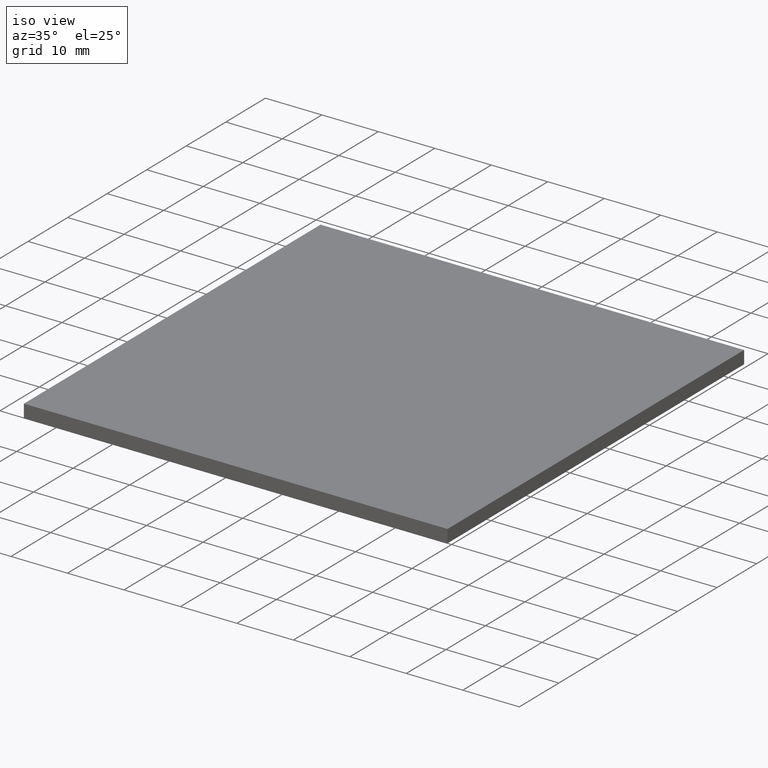
[diagram: clean part render]
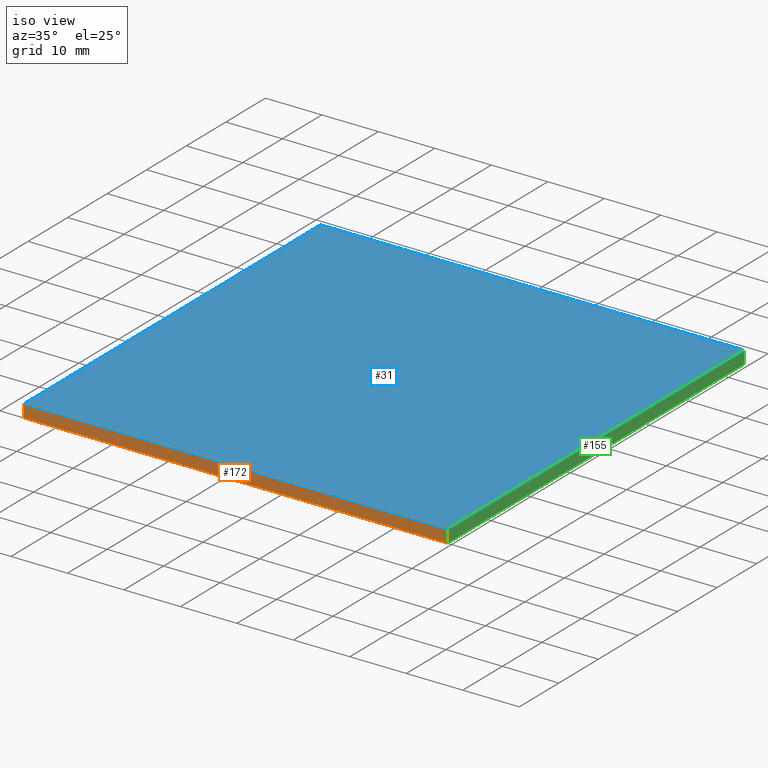
[diagram: same view with three faces highlighted in distinct colors, each labeled with its STEP entity id]
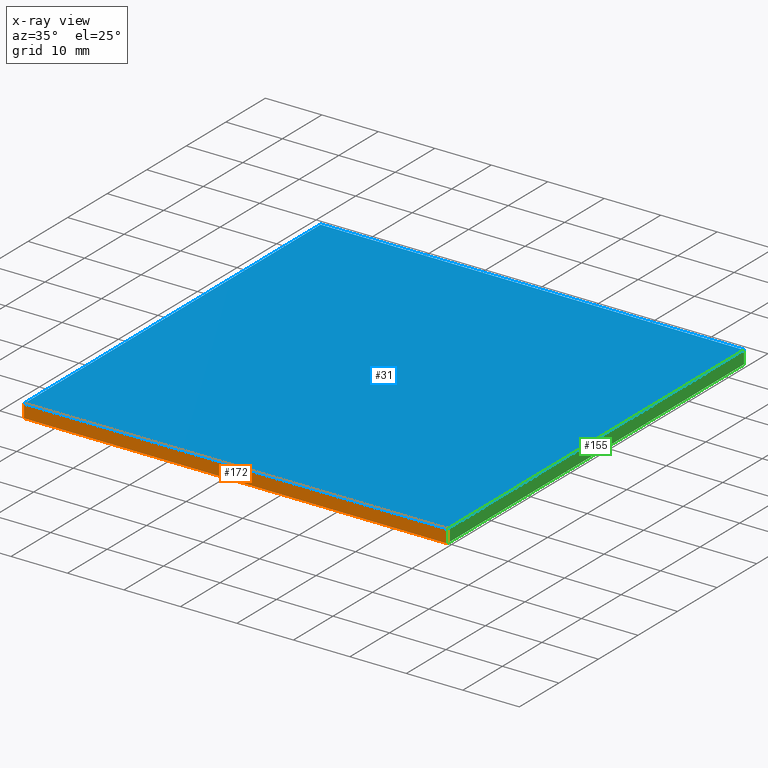
[diagram: x-ray of the same camera — body ghosted, the three highlighted faces saturated]
A machine part, iso view with three faces highlighted in distinct colors.
The next image is the same camera in x-ray (body ghosted, the three faces saturated) — at least one of them is partly hidden behind the body in this view.
Their STEP definitions:

[orange] entity #172 — the highlighted planar face has unit normal (0, 1, 0).
#13 = FACE_OUTER_BOUND ( 'NONE', #96, .T. ) ;
#19 = VECTOR ( 'NONE', #130, 1000.000000000000000 ) ;
#22 = CARTESIAN_POINT ( 'NONE',  ( 266.2438073276552500, 147.1897255035798100, 2.299999999999999800 ) ) ;
#47 = DIRECTION ( 'NONE',  ( 0.0000000000000000000, 1.000000000000000000, 0.0000000000000000000 ) ) ;
#48 = AXIS2_PLACEMENT_3D ( 'NONE', #22, #47, #196 ) ;
#55 = VECTOR ( 'NONE', #72, 1000.000000000000000 ) ;
#60 = VECTOR ( 'NONE', #129, 1000.000000000000000 ) ;
#63 = ORIENTED_EDGE ( 'NONE', *, *, #115, .F. ) ;
#72 = DIRECTION ( 'NONE',  ( -0.0000000000000000000, -0.0000000000000000000, -1.000000000000000000 ) ) ;
#77 = LINE ( 'NONE', #153, #55 ) ;
#78 = CARTESIAN_POINT ( 'NONE',  ( 341.2438073276552500, 147.1897255035798100, 2.299999999999999800 ) ) ;
#83 = PLANE ( 'NONE',  #48 ) ;
#85 = ORIENTED_EDGE ( 'NONE', *, *, #86, .F. ) ;
#86 = EDGE_CURVE ( 'NONE', #89, #199, #109, .T. ) ;
#89 = VERTEX_POINT ( 'NONE', #191 ) ;
#96 = EDGE_LOOP ( 'NONE', ( #179, #85, #63, #144 ) ) ;
#104 = CARTESIAN_POINT ( 'NONE',  ( 266.2438073276552500, 147.1897255035798100, 2.299999999999999800 ) ) ;
#107 = EDGE_CURVE ( 'NONE', #138, #199, #190, .T. ) ;
#109 = LINE ( 'NONE', #78, #19 ) ;
#115 = EDGE_CURVE ( 'NONE', #140, #89, #186, .T. ) ;
#122 = DIRECTION ( 'NONE',  ( 1.000000000000000000, 0.0000000000000000000, 0.0000000000000000000 ) ) ;
#129 = DIRECTION ( 'NONE',  ( 1.000000000000000000, 0.0000000000000000000, 0.0000000000000000000 ) ) ;
#130 = DIRECTION ( 'NONE',  ( -0.0000000000000000000, -0.0000000000000000000, -1.000000000000000000 ) ) ;
#138 = VERTEX_POINT ( 'NONE', #198 ) ;
#140 = VERTEX_POINT ( 'NONE', #165 ) ;
#142 = EDGE_CURVE ( 'NONE', #140, #138, #77, .T. ) ;
#144 = ORIENTED_EDGE ( 'NONE', *, *, #142, .T. ) ;
#151 = CARTESIAN_POINT ( 'NONE',  ( 341.2438073276552500, 147.1897255035798100, 0.0000000000000000000 ) ) ;
#152 = VECTOR ( 'NONE', #122, 1000.000000000000000 ) ;
#153 = CARTESIAN_POINT ( 'NONE',  ( 266.2438073276552500, 147.1897255035798100, 2.299999999999999800 ) ) ;
#165 = CARTESIAN_POINT ( 'NONE',  ( 266.2438073276552500, 147.1897255035798100, 2.299999999999999800 ) ) ;
#172 = ADVANCED_FACE ( 'NONE', ( #13 ), #83, .F. ) ;
#176 = CARTESIAN_POINT ( 'NONE',  ( 266.2438073276552500, 147.1897255035798100, 0.0000000000000000000 ) ) ;
#179 = ORIENTED_EDGE ( 'NONE', *, *, #107, .T. ) ;
#186 = LINE ( 'NONE', #104, #152 ) ;
#190 = LINE ( 'NONE', #176, #60 ) ;
#191 = CARTESIAN_POINT ( 'NONE',  ( 341.2438073276552500, 147.1897255035798100, 2.299999999999999800 ) ) ;
#196 = DIRECTION ( 'NONE',  ( 0.0000000000000000000, -0.0000000000000000000, 1.000000000000000000 ) ) ;
#198 = CARTESIAN_POINT ( 'NONE',  ( 266.2438073276552500, 147.1897255035798100, 0.0000000000000000000 ) ) ;
#199 = VERTEX_POINT ( 'NONE', #151 ) ;

[blue] entity #31 — the highlighted planar face has unit normal (-0, 0, 1).
#12 = LINE ( 'NONE', #37, #75 ) ;
#21 = DIRECTION ( 'NONE',  ( -1.000000000000000000, -0.0000000000000000000, -0.0000000000000000000 ) ) ;
#26 = EDGE_CURVE ( 'NONE', #89, #54, #195, .T. ) ;
#31 = ADVANCED_FACE ( 'NONE', ( #173 ), #146, .T. ) ;
#37 = CARTESIAN_POINT ( 'NONE',  ( 266.2438073276553000, 222.1897255035797800, 2.299999999999999800 ) ) ;
#49 = ORIENTED_EDGE ( 'NONE', *, *, #110, .T. ) ;
#54 = VERTEX_POINT ( 'NONE', #80 ) ;
#58 = DIRECTION ( 'NONE',  ( -0.0000000000000000000, 0.0000000000000000000, 1.000000000000000000 ) ) ;
#75 = VECTOR ( 'NONE', #21, 1000.000000000000000 ) ;
#80 = CARTESIAN_POINT ( 'NONE',  ( 341.2438073276552500, 222.1897255035797800, 2.299999999999999800 ) ) ;
#89 = VERTEX_POINT ( 'NONE', #191 ) ;
#97 = CARTESIAN_POINT ( 'NONE',  ( 341.2438073276552500, 222.1897255035797800, 2.299999999999999800 ) ) ;
#100 = EDGE_CURVE ( 'NONE', #201, #140, #171, .T. ) ;
#102 = CARTESIAN_POINT ( 'NONE',  ( 266.2438073276553000, 222.1897255035797800, 2.299999999999999800 ) ) ;
#104 = CARTESIAN_POINT ( 'NONE',  ( 266.2438073276552500, 147.1897255035798100, 2.299999999999999800 ) ) ;
#105 = ORIENTED_EDGE ( 'NONE', *, *, #100, .T. ) ;
#110 = EDGE_CURVE ( 'NONE', #54, #201, #12, .T. ) ;
#113 = ORIENTED_EDGE ( 'NONE', *, *, #115, .T. ) ;
#114 = DIRECTION ( 'NONE',  ( -7.401486830834381200E-016, -1.000000000000000000, 0.0000000000000000000 ) ) ;
#115 = EDGE_CURVE ( 'NONE', #140, #89, #186, .T. ) ;
#116 = EDGE_LOOP ( 'NONE', ( #105, #113, #161, #49 ) ) ;
#122 = DIRECTION ( 'NONE',  ( 1.000000000000000000, 0.0000000000000000000, 0.0000000000000000000 ) ) ;
#126 = VECTOR ( 'NONE', #177, 1000.000000000000000 ) ;
#140 = VERTEX_POINT ( 'NONE', #165 ) ;
#143 = CARTESIAN_POINT ( 'NONE',  ( 266.2438073276553000, 222.1897255035797800, 2.299999999999999800 ) ) ;
#146 = PLANE ( 'NONE',  #154 ) ;
#147 = DIRECTION ( 'NONE',  ( 1.000000000000000000, 0.0000000000000000000, 0.0000000000000000000 ) ) ;
#152 = VECTOR ( 'NONE', #122, 1000.000000000000000 ) ;
#154 = AXIS2_PLACEMENT_3D ( 'NONE', #192, #58, #147 ) ;
#157 = VECTOR ( 'NONE', #114, 1000.000000000000000 ) ;
#161 = ORIENTED_EDGE ( 'NONE', *, *, #26, .T. ) ;
#165 = CARTESIAN_POINT ( 'NONE',  ( 266.2438073276552500, 147.1897255035798100, 2.299999999999999800 ) ) ;
#171 = LINE ( 'NONE', #143, #157 ) ;
#173 = FACE_OUTER_BOUND ( 'NONE', #116, .T. ) ;
#177 = DIRECTION ( 'NONE',  ( -0.0000000000000000000, 1.000000000000000000, -0.0000000000000000000 ) ) ;
#186 = LINE ( 'NONE', #104, #152 ) ;
#191 = CARTESIAN_POINT ( 'NONE',  ( 341.2438073276552500, 147.1897255035798100, 2.299999999999999800 ) ) ;
#192 = CARTESIAN_POINT ( 'NONE',  ( 0.0000000000000000000, 0.0000000000000000000, 2.299999999999999800 ) ) ;
#195 = LINE ( 'NONE', #97, #126 ) ;
#201 = VERTEX_POINT ( 'NONE', #102 ) ;

[green] entity #155 — the highlighted planar face has unit normal (-1, 0, 0).
#3 = CARTESIAN_POINT ( 'NONE',  ( 341.2438073276552500, 222.1897255035797800, 0.0000000000000000000 ) ) ;
#6 = LINE ( 'NONE', #69, #164 ) ;
#9 = PLANE ( 'NONE',  #74 ) ;
#10 = CARTESIAN_POINT ( 'NONE',  ( 341.2438073276552500, 222.1897255035797800, 2.299999999999999800 ) ) ;
#17 = DIRECTION ( 'NONE',  ( -0.0000000000000000000, -0.0000000000000000000, -1.000000000000000000 ) ) ;
#19 = VECTOR ( 'NONE', #130, 1000.000000000000000 ) ;
#23 = VERTEX_POINT ( 'NONE', #189 ) ;
#26 = EDGE_CURVE ( 'NONE', #89, #54, #195, .T. ) ;
#43 = FACE_OUTER_BOUND ( 'NONE', #50, .T. ) ;
#50 = EDGE_LOOP ( 'NONE', ( #139, #73, #51, #70 ) ) ;
#51 = ORIENTED_EDGE ( 'NONE', *, *, #26, .F. ) ;
#54 = VERTEX_POINT ( 'NONE', #80 ) ;
#69 = CARTESIAN_POINT ( 'NONE',  ( 341.2438073276552500, 222.1897255035797800, 2.299999999999999800 ) ) ;
#70 = ORIENTED_EDGE ( 'NONE', *, *, #86, .T. ) ;
#73 = ORIENTED_EDGE ( 'NONE', *, *, #87, .F. ) ;
#74 = AXIS2_PLACEMENT_3D ( 'NONE', #10, #168, #184 ) ;
#78 = CARTESIAN_POINT ( 'NONE',  ( 341.2438073276552500, 147.1897255035798100, 2.299999999999999800 ) ) ;
#80 = CARTESIAN_POINT ( 'NONE',  ( 341.2438073276552500, 222.1897255035797800, 2.299999999999999800 ) ) ;
#86 = EDGE_CURVE ( 'NONE', #89, #199, #109, .T. ) ;
#87 = EDGE_CURVE ( 'NONE', #54, #23, #6, .T. ) ;
#89 = VERTEX_POINT ( 'NONE', #191 ) ;
#90 = EDGE_CURVE ( 'NONE', #199, #23, #183, .T. ) ;
#92 = DIRECTION ( 'NONE',  ( -0.0000000000000000000, 1.000000000000000000, -0.0000000000000000000 ) ) ;
#97 = CARTESIAN_POINT ( 'NONE',  ( 341.2438073276552500, 222.1897255035797800, 2.299999999999999800 ) ) ;
#109 = LINE ( 'NONE', #78, #19 ) ;
#124 = VECTOR ( 'NONE', #92, 1000.000000000000000 ) ;
#126 = VECTOR ( 'NONE', #177, 1000.000000000000000 ) ;
#130 = DIRECTION ( 'NONE',  ( -0.0000000000000000000, -0.0000000000000000000, -1.000000000000000000 ) ) ;
#139 = ORIENTED_EDGE ( 'NONE', *, *, #90, .T. ) ;
#151 = CARTESIAN_POINT ( 'NONE',  ( 341.2438073276552500, 147.1897255035798100, 0.0000000000000000000 ) ) ;
#155 = ADVANCED_FACE ( 'NONE', ( #43 ), #9, .F. ) ;
#164 = VECTOR ( 'NONE', #17, 1000.000000000000000 ) ;
#168 = DIRECTION ( 'NONE',  ( -1.000000000000000000, 0.0000000000000000000, 0.0000000000000000000 ) ) ;
#177 = DIRECTION ( 'NONE',  ( -0.0000000000000000000, 1.000000000000000000, -0.0000000000000000000 ) ) ;
#183 = LINE ( 'NONE', #3, #124 ) ;
#184 = DIRECTION ( 'NONE',  ( 0.0000000000000000000, 0.0000000000000000000, 1.000000000000000000 ) ) ;
#189 = CARTESIAN_POINT ( 'NONE',  ( 341.2438073276552500, 222.1897255035797800, 0.0000000000000000000 ) ) ;
#191 = CARTESIAN_POINT ( 'NONE',  ( 341.2438073276552500, 147.1897255035798100, 2.299999999999999800 ) ) ;
#195 = LINE ( 'NONE', #97, #126 ) ;
#199 = VERTEX_POINT ( 'NONE', #151 ) ;